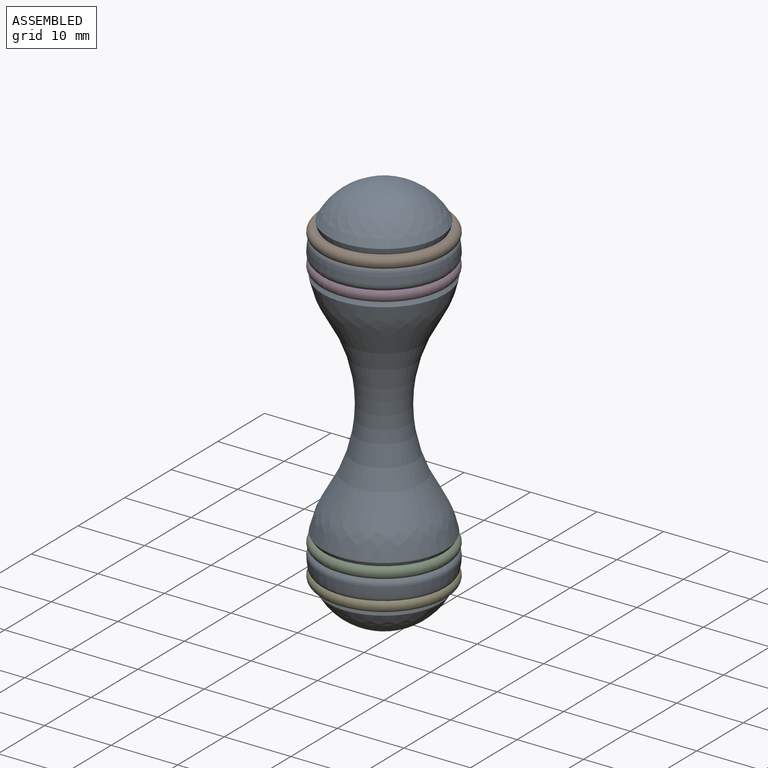
[diagram: assembled view]
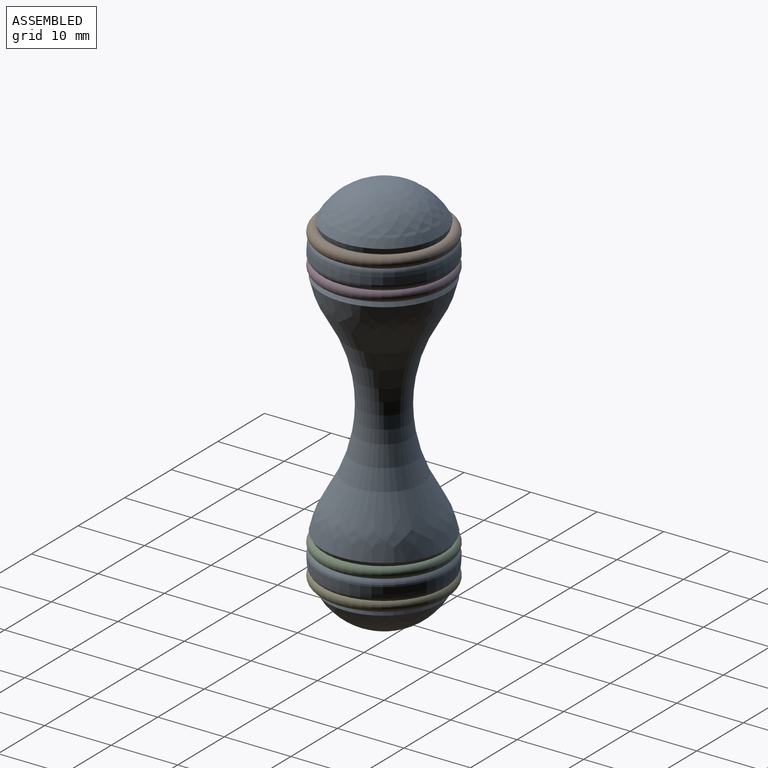
[diagram: assembled view, second angle]
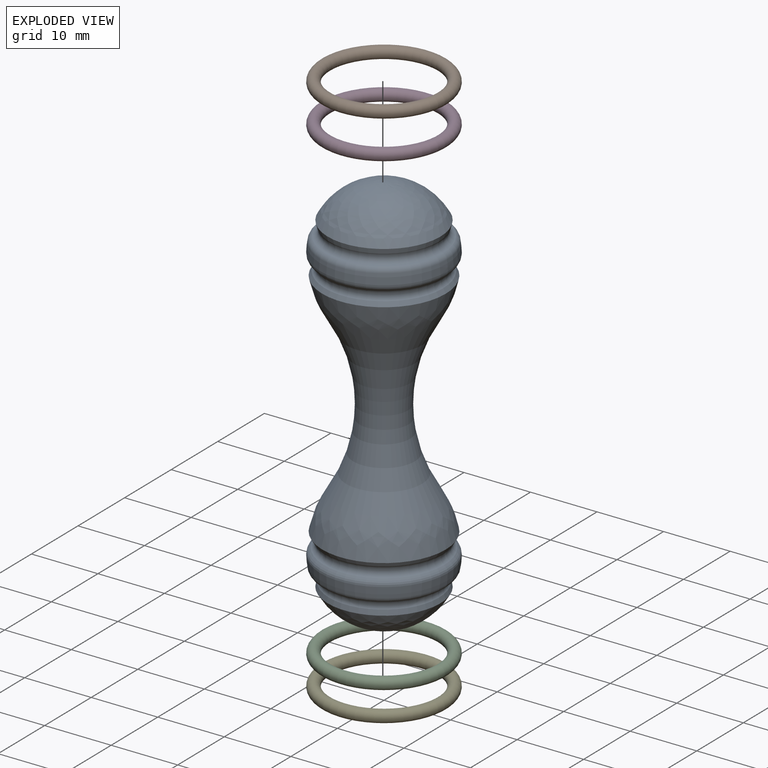
[diagram: exploded view]
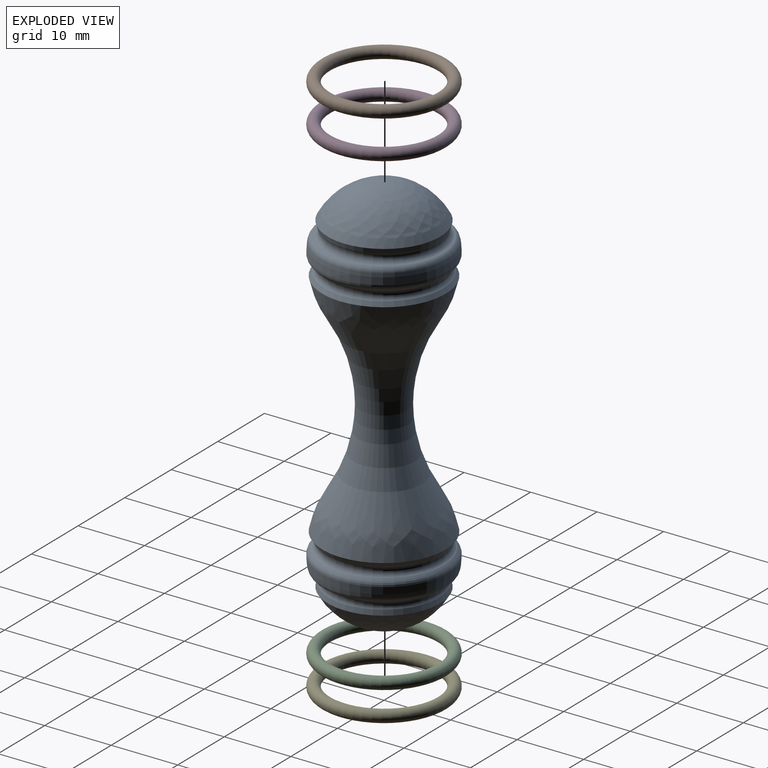
[diagram: exploded view, second angle]
ASSEMBLY  parts=5 mates=4
PART A: 24 faces, bbox 21.8x54.9x21.8 mm
  f0: cone r=8.89mm half-angle=31.6deg, axis (0,-1,0), area 42.8mm2, adj f1,f9
  f1: torus R=9.44mm, axis (0,1,0), area 100.2mm2, adj f0,f2
  f2: cone r=9.04mm half-angle=45.5deg, axis (0,1,0), area 19.5mm2, adj f1,f22
  f3: revolved ~19.17x19.17mm, area 94mm2, adj f22,f23
  f4: cone r=8.89mm half-angle=61.6deg, axis (0,-1,0), area 2.3mm2, adj f5,f23
  f5: torus R=9.01mm, axis (0,1,0), area 95.9mm2, adj f4,f6
  f6: cone r=8.26mm half-angle=15.5deg, axis (0,1,0), area 39.4mm2, adj f5,f7
  f7: revolved ~16.92x8.46mm, area 0mm2, adj f6
  f8: torus R=25.99mm, axis (0,1,0), area 382.2mm2, adj f9,f18
  f9: revolved ~18.57x18.57mm, area 305.4mm2, adj f0,f8
  f10: cone r=8.89mm half-angle=31.6deg, axis (0,1,0), area 42.8mm2, adj f11,f19
  f11: torus R=9.44mm, axis (0,-1,0), area 100.2mm2, adj f10,f12
  f12: cone r=9.04mm half-angle=45.5deg, axis (0,-1,0), area 19.5mm2, adj f11,f20
  f13: revolved ~19.17x19.17mm, area 94mm2, adj f20,f21
  f14: cone r=8.89mm half-angle=61.6deg, axis (0,1,0), area 2.3mm2, adj f15,f21
  f15: torus R=9.01mm, axis (0,-1,0), area 95.9mm2, adj f14,f16
  f16: cone r=8.26mm half-angle=15.5deg, axis (0,-1,0), area 39.4mm2, adj f15,f17
  f17: revolved ~16.92x16.92mm, area 306.2mm2, adj f16
  f18: torus R=25.99mm, axis (0,-1,0), area 382.2mm2, adj f8,f19
  f19: revolved ~18.57x18.57mm, area 305.4mm2, adj f10,f18
  f20: torus R=8.58mm, axis (0,-1,0), area 47.9mm2, adj f12,f13
  f21: torus R=8.45mm, axis (0,-1,0), area 52.3mm2, adj f13,f14
  f22: torus R=8.58mm, axis (0,-1,0), area 47.9mm2, adj f2,f3
  f23: torus R=8.45mm, axis (0,-1,0), area 52.3mm2, adj f3,f4
PART B: 1 faces, bbox 20.7x20.7x1.8 mm
  f0: torus R=8.69mm, axis (0,0,-1), area 305.3mm2
PART C: same geometry as B
PART D: same geometry as B
PART E: same geometry as B
PLACE A rot(axis=(1,0,0),90deg) t=(0,0,0)mm
PLACE B t=(0,0,23.31)mm
PLACE C t=(0,0,-18.82)mm
PLACE D t=(0,0,18.82)mm
PLACE E t=(0,0,-23.31)mm
MATE revolute B.f0 <-> A.f1  axis (0,0,-1) through (0,0,23.31)mm
MATE revolute C.f0 <-> A.f23  axis (0,0,-1) through (0,0,-18.82)mm
MATE revolute D.f0 <-> A.f23  axis (0,0,-1) through (0,0,18.82)mm
MATE revolute E.f0 <-> A.f1  axis (0,0,-1) through (0,0,-23.31)mm
